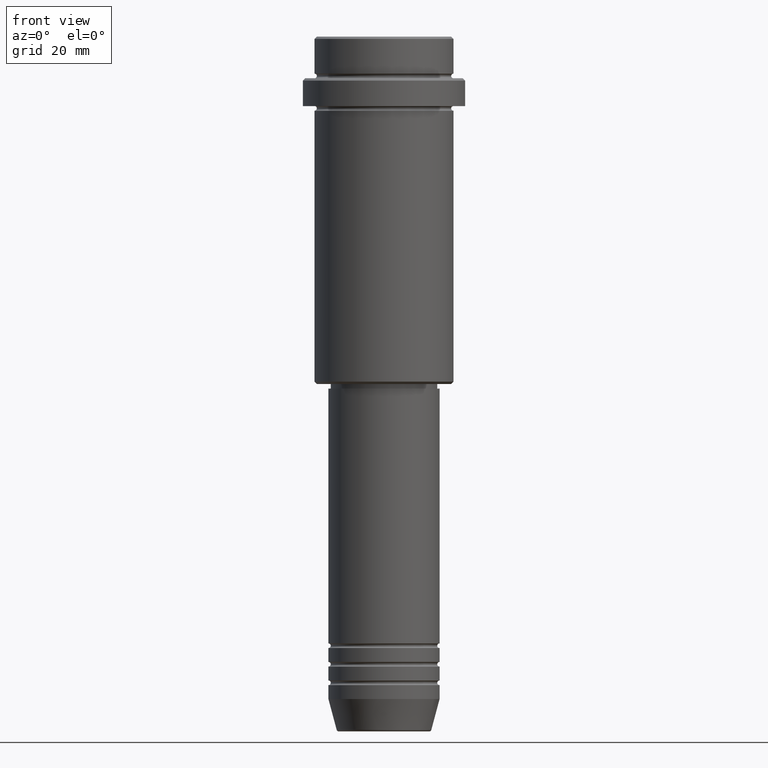
[diagram: clean part render]
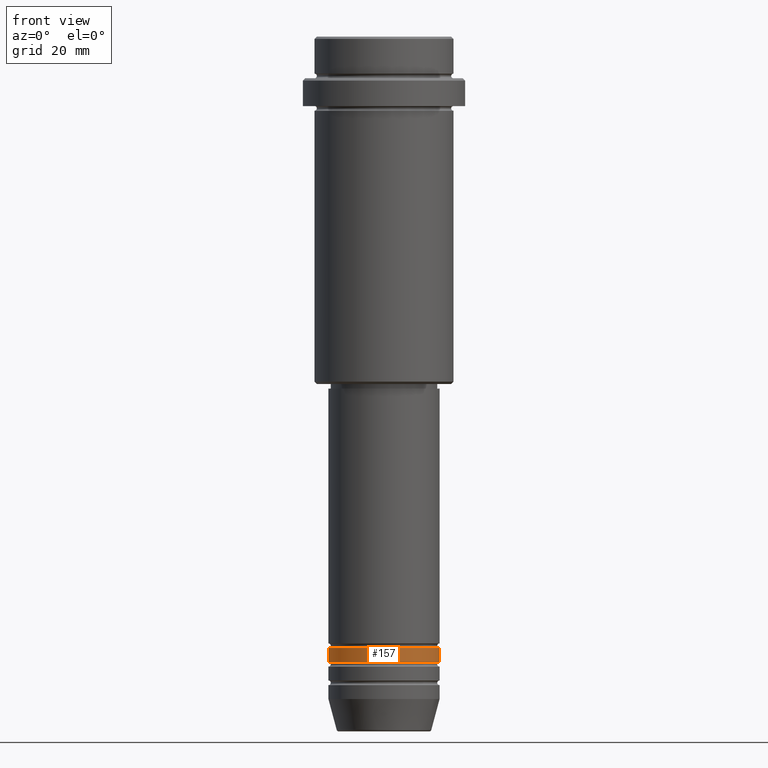
[diagram: same view with one face highlighted and labeled with its STEP entity id]
A machine part, front view. The second image highlights one B-rep face of the part: STEP entity #157.
In plain terms, the highlighted cylindrical surface (partial cylindrical patch) has radius 12 mm, axis along (-0, -0, 1).
Its self-contained STEP definition (entity closure, byte-faithful):
#146 = DIRECTION ( 'NONE',  ( -0.000000000000000000, -0.000000000000000000, 1.000000000000000000 ) ) ;
#157 = ADVANCED_FACE ( 'NONE', ( #819 ), #1120, .T. ) ;
#172 = DIRECTION ( 'NONE',  ( -0.000000000000000000, -0.000000000000000000, 1.000000000000000000 ) ) ;
#188 = ORIENTED_EDGE ( 'NONE', *, *, #1286, .T. ) ;
#219 = ORIENTED_EDGE ( 'NONE', *, *, #301, .F. ) ;
#222 = EDGE_CURVE ( 'NONE', #1374, #1260, #756, .T. ) ;
#301 = EDGE_CURVE ( 'NONE', #1260, #1019, #706, .T. ) ;
#302 = CARTESIAN_POINT ( 'NONE',  ( -12.00000000000000000, 1.469576158976823947E-15, 0.000000000000000000 ) ) ;
#372 = CARTESIAN_POINT ( 'NONE',  ( 0.000000000000000000, 0.000000000000000000, -134.9999999999998863 ) ) ;
#392 = AXIS2_PLACEMENT_3D ( 'NONE', #372, #687, #1140 ) ;
#396 = LINE ( 'NONE', #1342, #476 ) ;
#476 = VECTOR ( 'NONE', #172, 1000.000000000000000 ) ;
#522 = EDGE_LOOP ( 'NONE', ( #563, #188, #725, #219 ) ) ;
#528 = DIRECTION ( 'NONE',  ( -0.000000000000000000, -0.000000000000000000, 1.000000000000000000 ) ) ;
#548 = DIRECTION ( 'NONE',  ( 1.000000000000000000, 0.000000000000000000, 0.000000000000000000 ) ) ;
#563 = ORIENTED_EDGE ( 'NONE', *, *, #222, .F. ) ;
#565 = EDGE_CURVE ( 'NONE', #722, #1019, #396, .T. ) ;
#595 = AXIS2_PLACEMENT_3D ( 'NONE', #1274, #649, #548 ) ;
#644 = CIRCLE ( 'NONE', #392, 12.00000000000000000 ) ;
#649 = DIRECTION ( 'NONE',  ( -0.000000000000000000, -0.000000000000000000, 1.000000000000000000 ) ) ;
#687 = DIRECTION ( 'NONE',  ( -0.000000000000000000, -0.000000000000000000, 1.000000000000000000 ) ) ;
#706 = CIRCLE ( 'NONE', #595, 12.00000000000000000 ) ;
#715 = CARTESIAN_POINT ( 'NONE',  ( 12.00000000000000000, 0.000000000000000000, -131.9999999999998863 ) ) ;
#722 = VERTEX_POINT ( 'NONE', #939 ) ;
#725 = ORIENTED_EDGE ( 'NONE', *, *, #565, .T. ) ;
#756 = LINE ( 'NONE', #302, #1405 ) ;
#762 = CARTESIAN_POINT ( 'NONE',  ( -12.00000000000000000, 1.469576158976823947E-15, -131.9999999999998863 ) ) ;
#819 = FACE_OUTER_BOUND ( 'NONE', #522, .T. ) ;
#934 = CARTESIAN_POINT ( 'NONE',  ( 0.000000000000000000, 0.000000000000000000, 0.000000000000000000 ) ) ;
#939 = CARTESIAN_POINT ( 'NONE',  ( 12.00000000000000000, 0.000000000000000000, -134.9999999999998863 ) ) ;
#1019 = VERTEX_POINT ( 'NONE', #715 ) ;
#1120 = CYLINDRICAL_SURFACE ( 'NONE', #1174, 12.00000000000000000 ) ;
#1123 = CARTESIAN_POINT ( 'NONE',  ( -12.00000000000000000, 1.469576158976823947E-15, -134.9999999999998863 ) ) ;
#1140 = DIRECTION ( 'NONE',  ( 1.000000000000000000, 0.000000000000000000, 0.000000000000000000 ) ) ;
#1150 = DIRECTION ( 'NONE',  ( 1.000000000000000000, 0.000000000000000000, 0.000000000000000000 ) ) ;
#1174 = AXIS2_PLACEMENT_3D ( 'NONE', #934, #146, #1150 ) ;
#1260 = VERTEX_POINT ( 'NONE', #762 ) ;
#1274 = CARTESIAN_POINT ( 'NONE',  ( 0.000000000000000000, 0.000000000000000000, -131.9999999999998863 ) ) ;
#1286 = EDGE_CURVE ( 'NONE', #1374, #722, #644, .T. ) ;
#1342 = CARTESIAN_POINT ( 'NONE',  ( 12.00000000000000000, 0.000000000000000000, 0.000000000000000000 ) ) ;
#1374 = VERTEX_POINT ( 'NONE', #1123 ) ;
#1405 = VECTOR ( 'NONE', #528, 1000.000000000000000 ) ;